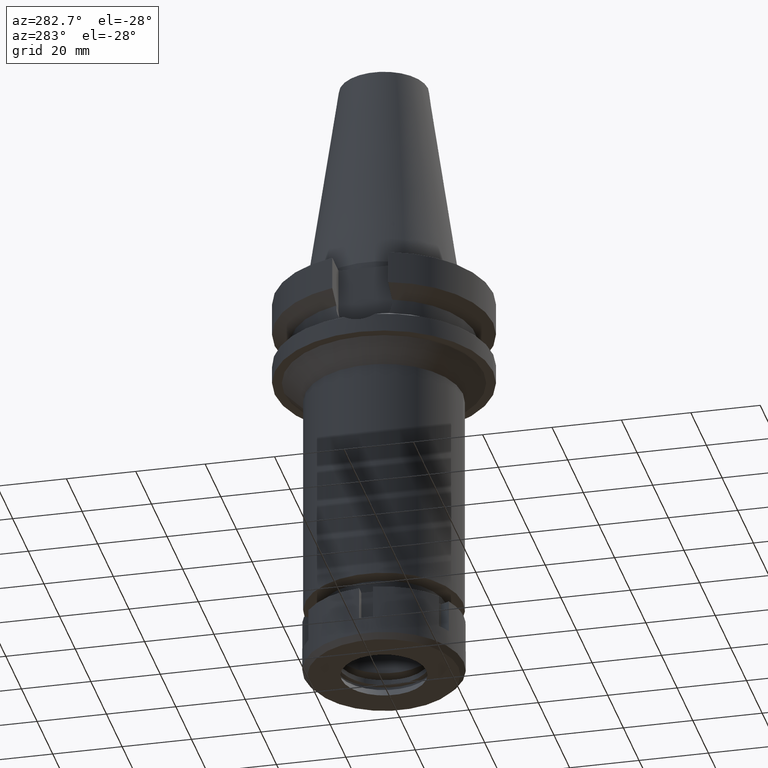
[diagram: clean part render]
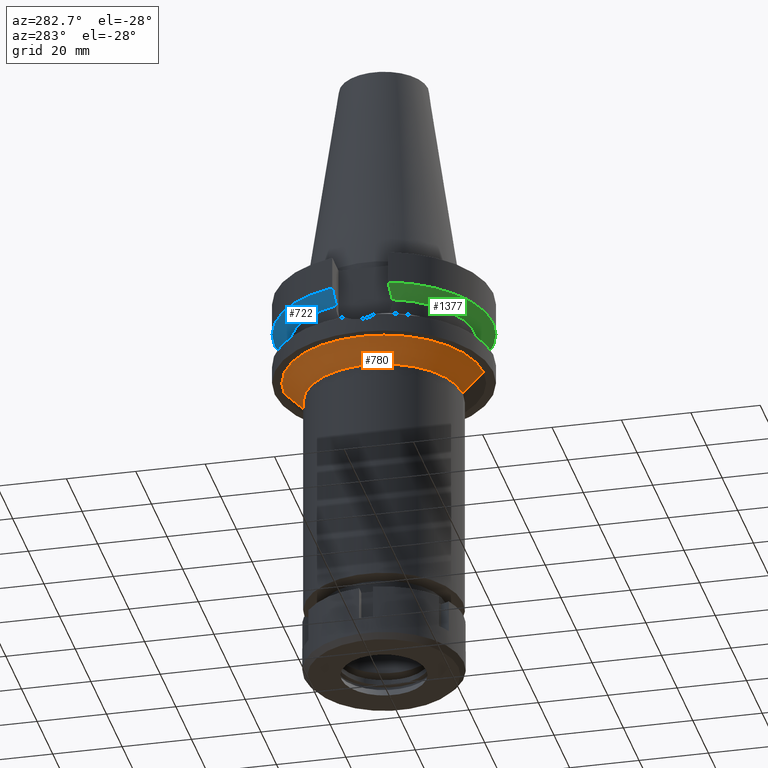
[diagram: same view with three faces highlighted in distinct colors, each labeled with its STEP entity id]
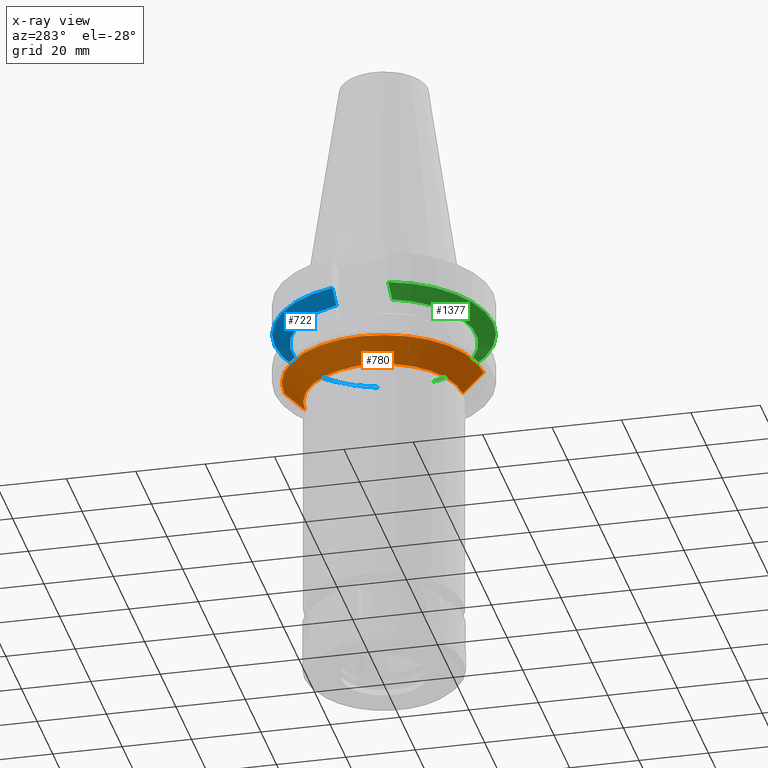
[diagram: x-ray of the same camera — body ghosted, the three highlighted faces saturated]
A machine part, auxiliary view with three faces highlighted in distinct colors.
The next image is the same camera in x-ray (body ghosted, the three faces saturated) — at least one of them is partly hidden behind the body in this view.
Their STEP definitions:

[orange] entity #780 — the highlighted conical surface has half-angle 45 deg.
#132 = ORIENTED_EDGE ( 'NONE', *, *, #409, .T. ) ;
#314 = DIRECTION ( 'NONE',  ( 0.0000000000000000000, 0.0000000000000000000, 1.000000000000000000 ) ) ;
#409 = EDGE_CURVE ( 'NONE', #1846, #1325, #2648, .T. ) ;
#485 = CIRCLE ( 'NONE', #2541, 22.75000000000000000 ) ;
#525 = VECTOR ( 'NONE', #3268, 1000.000000000000114 ) ;
#608 = DIRECTION ( 'NONE',  ( 0.0000000000000000000, 0.0000000000000000000, -1.000000000000000000 ) ) ;
#780 = ADVANCED_FACE ( 'NONE', ( #1450 ), #2295, .T. ) ;
#818 = CARTESIAN_POINT ( 'NONE',  ( 0.0000000000000000000, -22.75000000000000000, -33.00000000000000000 ) ) ;
#894 = CARTESIAN_POINT ( 'NONE',  ( 0.0000000000000000000, 0.0000000000000000000, -33.00000000000000000 ) ) ;
#1010 = CARTESIAN_POINT ( 'NONE',  ( 0.0000000000000000000, 22.75000000000000000, -33.00000000000000000 ) ) ;
#1059 = VERTEX_POINT ( 'NONE', #1010 ) ;
#1237 = CARTESIAN_POINT ( 'NONE',  ( 0.0000000000000000000, 28.75000000000000000, -27.00000000000000000 ) ) ;
#1281 = ORIENTED_EDGE ( 'NONE', *, *, #1479, .F. ) ;
#1325 = VERTEX_POINT ( 'NONE', #1949 ) ;
#1329 = CARTESIAN_POINT ( 'NONE',  ( 0.0000000000000000000, -28.75000000000000000, -27.00000000000000000 ) ) ;
#1450 = FACE_OUTER_BOUND ( 'NONE', #1695, .T. ) ;
#1455 = EDGE_CURVE ( 'NONE', #1846, #2600, #2850, .T. ) ;
#1479 = EDGE_CURVE ( 'NONE', #2600, #1059, #485, .T. ) ;
#1695 = EDGE_LOOP ( 'NONE', ( #1281, #2335, #132, #1892 ) ) ;
#1714 = DIRECTION ( 'NONE',  ( 0.0000000000000000000, -1.000000000000000000, 0.0000000000000000000 ) ) ;
#1731 = DIRECTION ( 'NONE',  ( 0.0000000000000000000, 0.7071067811865474617, -0.7071067811865474617 ) ) ;
#1762 = DIRECTION ( 'NONE',  ( 0.0000000000000000000, 1.000000000000000000, 0.0000000000000000000 ) ) ;
#1846 = VERTEX_POINT ( 'NONE', #1329 ) ;
#1853 = CARTESIAN_POINT ( 'NONE',  ( 0.0000000000000000000, 0.0000000000000000000, -27.00000000000000000 ) ) ;
#1892 = ORIENTED_EDGE ( 'NONE', *, *, #3373, .T. ) ;
#1949 = CARTESIAN_POINT ( 'NONE',  ( 0.0000000000000000000, 28.75000000000000000, -27.00000000000000000 ) ) ;
#2008 = CARTESIAN_POINT ( 'NONE',  ( 0.0000000000000000000, -28.75000000000000000, -27.00000000000000000 ) ) ;
#2170 = AXIS2_PLACEMENT_3D ( 'NONE', #3120, #314, #1762 ) ;
#2233 = VECTOR ( 'NONE', #1731, 1000.000000000000114 ) ;
#2295 = CONICAL_SURFACE ( 'NONE', #2170, 25.75000000000000000, 0.7853981633972997312 ) ;
#2335 = ORIENTED_EDGE ( 'NONE', *, *, #1455, .F. ) ;
#2541 = AXIS2_PLACEMENT_3D ( 'NONE', #894, #608, #1714 ) ;
#2600 = VERTEX_POINT ( 'NONE', #818 ) ;
#2648 = CIRCLE ( 'NONE', #2942, 28.75000000000000000 ) ;
#2697 = DIRECTION ( 'NONE',  ( 0.0000000000000000000, -1.000000000000000000, 0.0000000000000000000 ) ) ;
#2713 = DIRECTION ( 'NONE',  ( 0.0000000000000000000, 0.0000000000000000000, -1.000000000000000000 ) ) ;
#2850 = LINE ( 'NONE', #2008, #2233 ) ;
#2939 = LINE ( 'NONE', #1237, #525 ) ;
#2942 = AXIS2_PLACEMENT_3D ( 'NONE', #1853, #2713, #2697 ) ;
#3120 = CARTESIAN_POINT ( 'NONE',  ( 0.0000000000000000000, 0.0000000000000000000, -30.00000000000000000 ) ) ;
#3268 = DIRECTION ( 'NONE',  ( 0.0000000000000000000, -0.7071067811865474617, -0.7071067811865474617 ) ) ;
#3373 = EDGE_CURVE ( 'NONE', #1325, #1059, #2939, .T. ) ;

[blue] entity #722 — the highlighted conical surface has half-angle 60 deg.
#91 = CARTESIAN_POINT ( 'NONE',  ( 0.0000000000000000000, 1.065333950388000029E-14, -13.00888132564000088 ) ) ;
#121 = CARTESIAN_POINT ( 'NONE',  ( -25.24772216385000334, 8.050001586148999522, -14.45224487904000021 ) ) ;
#191 = CARTESIAN_POINT ( 'NONE',  ( -28.57295870773633339, 8.050008282487297606, -12.61547480681258016 ) ) ;
#194 = CARTESIAN_POINT ( 'NONE',  ( 25.24772413116000180, 8.049995415955999434, -14.45229202668999946 ) ) ;
#207 = VERTEX_POINT ( 'NONE', #3212 ) ;
#389 = EDGE_CURVE ( 'NONE', #2152, #207, #1848, .T. ) ;
#711 = DIRECTION ( 'NONE',  ( 0.0000000000000000000, 0.0000000000000000000, -1.000000000000000000 ) ) ;
#722 = ADVANCED_FACE ( 'NONE', ( #1507 ), #3246, .T. ) ;
#993 = CIRCLE ( 'NONE', #3629, 26.50000000000000711 ) ;
#1165 = ORIENTED_EDGE ( 'NONE', *, *, #389, .T. ) ;
#1216 = AXIS2_PLACEMENT_3D ( 'NONE', #1426, #1987, #2537 ) ;
#1271 = CARTESIAN_POINT ( 'NONE',  ( 0.0000000000000000000, 1.065333950388000029E-14, -14.45225699861000024 ) ) ;
#1426 = CARTESIAN_POINT ( 'NONE',  ( 0.0000000000000000000, 1.065333950388000029E-14, -11.56550565266999975 ) ) ;
#1507 = FACE_OUTER_BOUND ( 'NONE', #3170, .T. ) ;
#1523 = ORIENTED_EDGE ( 'NONE', *, *, #2364, .T. ) ;
#1529 = VERTEX_POINT ( 'NONE', #3423 ) ;
#1625 = CIRCLE ( 'NONE', #1216, 31.50000000000000000 ) ;
#1639 = AXIS2_PLACEMENT_3D ( 'NONE', #91, #2899, #2840 ) ;
#1824 = DIRECTION ( 'NONE',  ( -0.9527442516822307583, 0.3037735849057093818, 0.0000000000000000000 ) ) ;
#1841 = CARTESIAN_POINT ( 'NONE',  ( 28.57292329611287940, 8.049998556245109071, -12.61549605224363546 ) ) ;
#1848 = B_SPLINE_CURVE_WITH_KNOTS ( 'NONE', 3,
 ( #2664, #2681, #191, #3267 ),
 .UNSPECIFIED., .F., .F.,
 ( 4, 4 ),
 ( 0.0000000000000000000, 1.000000000000000000 ),
 .UNSPECIFIED. ) ;
#1987 = DIRECTION ( 'NONE',  ( 0.0000000000000000000, 0.0000000000000000000, 1.000000000000000000 ) ) ;
#2148 = B_SPLINE_CURVE_WITH_KNOTS ( 'NONE', 3,
 ( #3255, #1841, #2717, #194 ),
 .UNSPECIFIED., .F., .F.,
 ( 4, 4 ),
 ( 0.0000000000000000000, 1.000000000000000000 ),
 .UNSPECIFIED. ) ;
#2152 = VERTEX_POINT ( 'NONE', #121 ) ;
#2364 = EDGE_CURVE ( 'NONE', #2553, #1529, #2148, .T. ) ;
#2443 = ORIENTED_EDGE ( 'NONE', *, *, #3444, .F. ) ;
#2537 = DIRECTION ( 'NONE',  ( 0.0000000000000000000, 1.000000000000000000, 0.0000000000000000000 ) ) ;
#2553 = VERTEX_POINT ( 'NONE', #3422 ) ;
#2611 = EDGE_CURVE ( 'NONE', #2553, #207, #1625, .T. ) ;
#2664 = CARTESIAN_POINT ( 'NONE',  ( -25.24772216385000334, 8.050001586148999522, -14.45224487904000021 ) ) ;
#2681 = CARTESIAN_POINT ( 'NONE',  ( -26.83758147671821348, 8.050003175723896121, -13.57772735593369795 ) ) ;
#2717 = CARTESIAN_POINT ( 'NONE',  ( 26.83754616602292842, 8.049990821761200621, -13.57774887772870187 ) ) ;
#2840 = DIRECTION ( 'NONE',  ( 0.0000000000000000000, 1.000000000000000000, 0.0000000000000000000 ) ) ;
#2899 = DIRECTION ( 'NONE',  ( 0.0000000000000000000, 0.0000000000000000000, 1.000000000000000000 ) ) ;
#3170 = EDGE_LOOP ( 'NONE', ( #3479, #1523, #2443, #1165 ) ) ;
#3212 = CARTESIAN_POINT ( 'NONE',  ( -30.45402162745000041, 8.050004143762000908, -11.56546832742999875 ) ) ;
#3246 = CONICAL_SURFACE ( 'NONE', #1639, 29.00000000000000000, 1.047197551196400456 ) ;
#3255 = CARTESIAN_POINT ( 'NONE',  ( 30.45402291373000025, 8.049999277651000540, -11.56551215872000071 ) ) ;
#3267 = CARTESIAN_POINT ( 'NONE',  ( -30.45402162745000041, 8.050004143762000908, -11.56546832742999875 ) ) ;
#3422 = CARTESIAN_POINT ( 'NONE',  ( 30.45402291373000025, 8.049999277651000540, -11.56551215872000071 ) ) ;
#3423 = CARTESIAN_POINT ( 'NONE',  ( 25.24772413116000180, 8.049995415955999434, -14.45229202668999946 ) ) ;
#3444 = EDGE_CURVE ( 'NONE', #2152, #1529, #993, .T. ) ;
#3479 = ORIENTED_EDGE ( 'NONE', *, *, #2611, .F. ) ;
#3629 = AXIS2_PLACEMENT_3D ( 'NONE', #1271, #711, #1824 ) ;

[green] entity #1377 — the highlighted conical surface has half-angle 60 deg.
#13 = CARTESIAN_POINT ( 'NONE',  ( 25.24772266958000344, -8.050000000000000711, -14.45225699861000024 ) ) ;
#140 = ORIENTED_EDGE ( 'NONE', *, *, #2336, .F. ) ;
#208 = VERTEX_POINT ( 'NONE', #3451 ) ;
#349 = EDGE_LOOP ( 'NONE', ( #3021, #1488, #2602, #140 ) ) ;
#455 = DIRECTION ( 'NONE',  ( 0.0000000000000000000, 0.0000000000000000000, 1.000000000000000000 ) ) ;
#536 = CONICAL_SURFACE ( 'NONE', #2478, 29.00000000000000000, 1.047197551196400456 ) ;
#556 = CARTESIAN_POINT ( 'NONE',  ( -30.45402291362999847, -8.049999278012000659, -11.56551215546999956 ) ) ;
#566 = DIRECTION ( 'NONE',  ( 0.0000000000000000000, 1.000000000000000000, 0.0000000000000000000 ) ) ;
#775 = CARTESIAN_POINT ( 'NONE',  ( -26.83754615526542153, -8.049990820970586825, -13.57774888378038192 ) ) ;
#972 = B_SPLINE_CURVE_WITH_KNOTS ( 'NONE', 3,
 ( #13, #3199, #2593, #1690 ),
 .UNSPECIFIED., .F., .F.,
 ( 4, 4 ),
 ( 0.0000000000000000000, 1.000000000000000000 ),
 .UNSPECIFIED. ) ;
#1041 = CIRCLE ( 'NONE', #2151, 31.50000000000000000 ) ;
#1066 = DIRECTION ( 'NONE',  ( 0.0000000000000000000, 0.0000000000000000000, -1.000000000000000000 ) ) ;
#1377 = ADVANCED_FACE ( 'NONE', ( #2231 ), #536, .T. ) ;
#1488 = ORIENTED_EDGE ( 'NONE', *, *, #2970, .F. ) ;
#1575 = VERTEX_POINT ( 'NONE', #1758 ) ;
#1632 = DIRECTION ( 'NONE',  ( 0.9527442516822307583, -0.3037735849057093818, 0.0000000000000000000 ) ) ;
#1690 = CARTESIAN_POINT ( 'NONE',  ( 30.45402272279000044, -8.049999999999000622, -11.56550565266999975 ) ) ;
#1758 = CARTESIAN_POINT ( 'NONE',  ( 30.45402272279000044, -8.049999999999000622, -11.56550565266999975 ) ) ;
#1831 = CARTESIAN_POINT ( 'NONE',  ( -30.45402291362999847, -8.049999278012000659, -11.56551215546999956 ) ) ;
#1836 = VERTEX_POINT ( 'NONE', #1831 ) ;
#2151 = AXIS2_PLACEMENT_3D ( 'NONE', #2472, #455, #3594 ) ;
#2180 = DIRECTION ( 'NONE',  ( 0.0000000000000000000, 0.0000000000000000000, 1.000000000000000000 ) ) ;
#2185 = CARTESIAN_POINT ( 'NONE',  ( -25.24772413127999826, -8.049995415561999934, -14.45229202969999882 ) ) ;
#2231 = FACE_OUTER_BOUND ( 'NONE', #349, .T. ) ;
#2277 = AXIS2_PLACEMENT_3D ( 'NONE', #3374, #1066, #1632 ) ;
#2336 = EDGE_CURVE ( 'NONE', #1836, #1575, #1041, .T. ) ;
#2472 = CARTESIAN_POINT ( 'NONE',  ( 0.0000000000000000000, 1.065333950388000029E-14, -11.56550565266999975 ) ) ;
#2478 = AXIS2_PLACEMENT_3D ( 'NONE', #3367, #2180, #566 ) ;
#2593 = CARTESIAN_POINT ( 'NONE',  ( 28.57294949470615464, -8.050008281919359021, -12.61547991551893411 ) ) ;
#2602 = ORIENTED_EDGE ( 'NONE', *, *, #3154, .T. ) ;
#2800 = CARTESIAN_POINT ( 'NONE',  ( -25.24772413127999826, -8.049995415561999934, -14.45229202969999882 ) ) ;
#2876 = CIRCLE ( 'NONE', #2277, 26.50000000000000711 ) ;
#2970 = EDGE_CURVE ( 'NONE', #208, #3532, #2876, .T. ) ;
#3021 = ORIENTED_EDGE ( 'NONE', *, *, #3531, .T. ) ;
#3081 = CARTESIAN_POINT ( 'NONE',  ( -28.57292328601004527, -8.049998556963609886, -12.61549605777351601 ) ) ;
#3154 = EDGE_CURVE ( 'NONE', #208, #1575, #972, .T. ) ;
#3199 = CARTESIAN_POINT ( 'NONE',  ( 26.83757727987838848, -8.050003175967617608, -13.57772966443597440 ) ) ;
#3367 = CARTESIAN_POINT ( 'NONE',  ( 0.0000000000000000000, 1.065333950388000029E-14, -13.00888132564000088 ) ) ;
#3374 = CARTESIAN_POINT ( 'NONE',  ( 0.0000000000000000000, 1.065333950388000029E-14, -14.45225699861000024 ) ) ;
#3451 = CARTESIAN_POINT ( 'NONE',  ( 25.24772266958000344, -8.050000000000000711, -14.45225699861000024 ) ) ;
#3531 = EDGE_CURVE ( 'NONE', #1836, #3532, #3602, .T. ) ;
#3532 = VERTEX_POINT ( 'NONE', #2185 ) ;
#3594 = DIRECTION ( 'NONE',  ( 0.0000000000000000000, -1.000000000000000000, 0.0000000000000000000 ) ) ;
#3602 = B_SPLINE_CURVE_WITH_KNOTS ( 'NONE', 3,
 ( #556, #3081, #775, #2800 ),
 .UNSPECIFIED., .F., .F.,
 ( 4, 4 ),
 ( 0.0000000000000000000, 1.000000000000000000 ),
 .UNSPECIFIED. ) ;